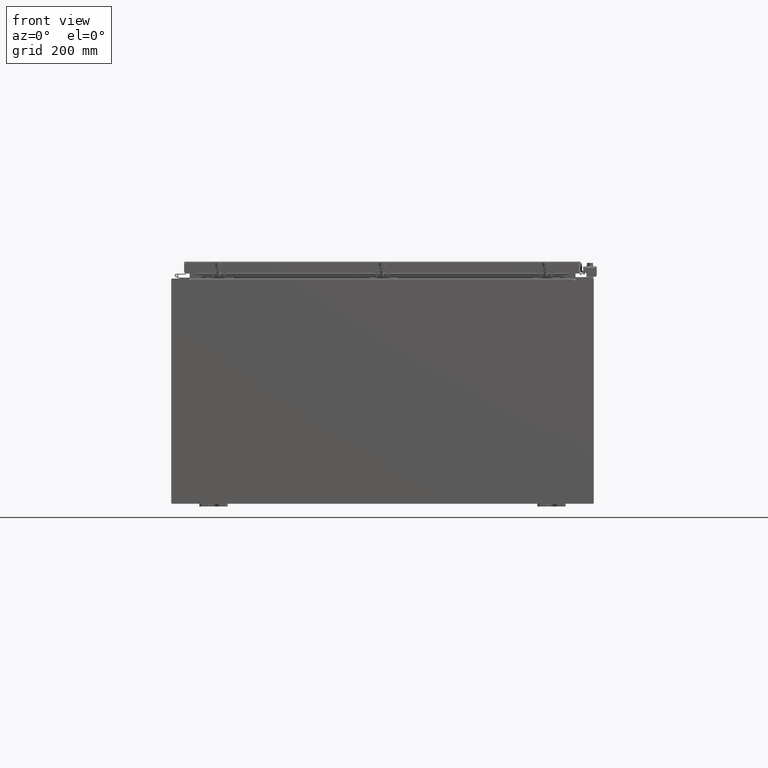
[diagram: clean part render]
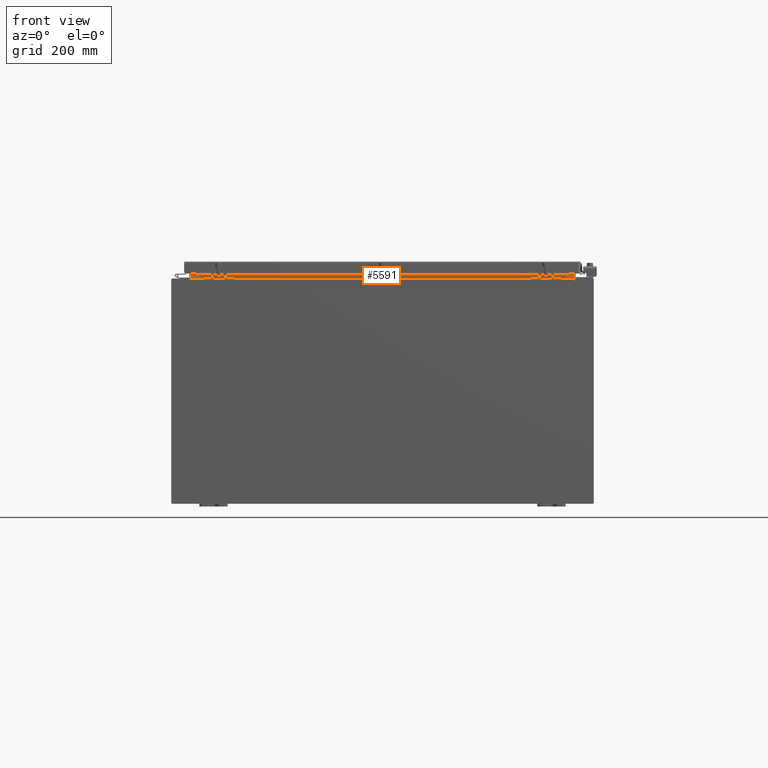
[diagram: same view with one face highlighted and labeled with its STEP entity id]
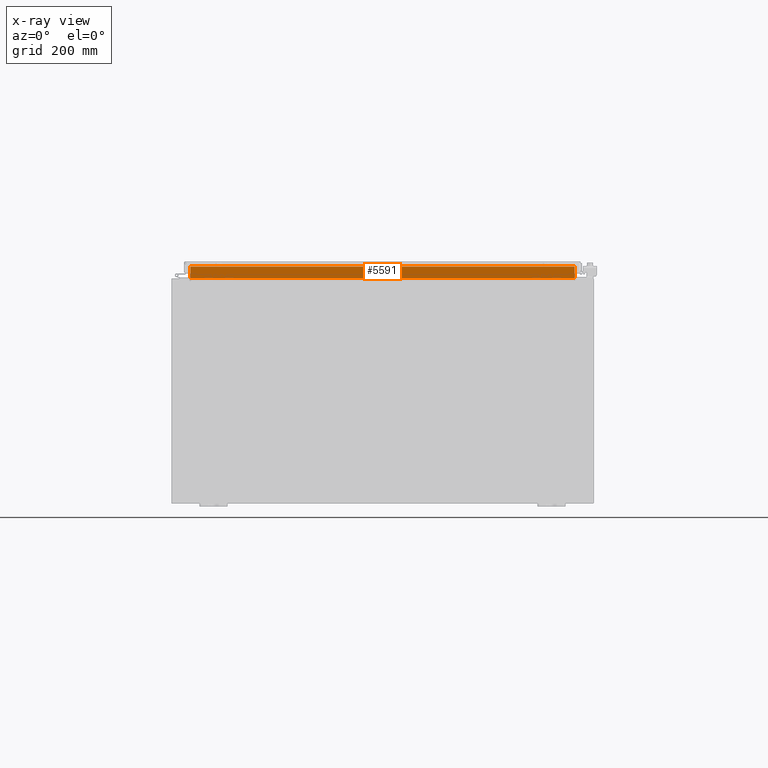
[diagram: x-ray of the same camera — body ghosted, the highlighted face saturated]
A machine part, front view. The second image highlights one B-rep face of the part: STEP entity #5591.
The next image is the same camera in x-ray: the body ghosted, the highlighted face saturated — about 0% of this face is hidden behind the body in this view.
In plain terms, the highlighted planar face has unit normal (0, -1, 0).
Its self-contained STEP definition (entity closure, byte-faithful):
#120 = VERTEX_POINT ( 'NONE', #35512 ) ;
#2834 = LINE ( 'NONE', #9807, #10678 ) ;
#3222 = EDGE_CURVE ( 'NONE', #3519, #5743, #34364, .T. ) ;
#3519 = VERTEX_POINT ( 'NONE', #22598 ) ;
#4043 = DIRECTION ( 'NONE',  ( -0.0000000000000000000, -0.0000000000000000000, 1.000000000000000000 ) ) ;
#4696 = CARTESIAN_POINT ( 'NONE',  ( -13.63719999999999800, -1.300300000000000200, 8.013000000000005200 ) ) ;
#5591 = ADVANCED_FACE ( 'NONE', ( #20575 ), #23343, .T. ) ;
#5743 = VERTEX_POINT ( 'NONE', #10703 ) ;
#6731 = DIRECTION ( 'NONE',  ( 0.0000000000000000000, 1.000000000000000000, 0.0000000000000000000 ) ) ;
#8247 = CARTESIAN_POINT ( 'NONE',  ( 13.63720000000000000, -1.300299999999999800, 8.013000000000003500 ) ) ;
#9807 = CARTESIAN_POINT ( 'NONE',  ( 13.63720000000000400, -1.300299999999999300, 8.837600000000001900 ) ) ;
#10128 = ORIENTED_EDGE ( 'NONE', *, *, #3222, .F. ) ;
#10678 = VECTOR ( 'NONE', #16507, 39.37007874015748100 ) ;
#10703 = CARTESIAN_POINT ( 'NONE',  ( -13.63719999999999800, -1.300299999999999800, 8.013000000000003500 ) ) ;
#10865 = ORIENTED_EDGE ( 'NONE', *, *, #32308, .F. ) ;
#10920 = CARTESIAN_POINT ( 'NONE',  ( -13.63719999999999800, -1.300299999999999800, 8.000000000000003600 ) ) ;
#15742 = LINE ( 'NONE', #4696, #33506 ) ;
#16507 = DIRECTION ( 'NONE',  ( -1.000000000000000000, -0.0000000000000000000, -0.0000000000000000000 ) ) ;
#16593 = VECTOR ( 'NONE', #30892, 39.37007874015748100 ) ;
#19553 = VECTOR ( 'NONE', #4043, 39.37007874015748100 ) ;
#19980 = DIRECTION ( 'NONE',  ( 0.0000000000000000000, -0.0000000000000000000, 1.000000000000000000 ) ) ;
#20575 = FACE_OUTER_BOUND ( 'NONE', #31305, .T. ) ;
#22598 = CARTESIAN_POINT ( 'NONE',  ( -13.63719999999999800, -1.300299999999999300, 8.837600000000001900 ) ) ;
#23343 = PLANE ( 'NONE',  #30276 ) ;
#26699 = CARTESIAN_POINT ( 'NONE',  ( 0.0000000000000000000, -1.300299999999999800, 0.0000000000000000000 ) ) ;
#27405 = EDGE_CURVE ( 'NONE', #30916, #120, #28437, .T. ) ;
#27873 = EDGE_CURVE ( 'NONE', #120, #3519, #2834, .T. ) ;
#27973 = DIRECTION ( 'NONE',  ( 1.000000000000000000, 0.0000000000000000000, -1.201939398262515500E-016 ) ) ;
#28437 = LINE ( 'NONE', #40688, #19553 ) ;
#29400 = ORIENTED_EDGE ( 'NONE', *, *, #27873, .F. ) ;
#30194 = ORIENTED_EDGE ( 'NONE', *, *, #27405, .F. ) ;
#30276 = AXIS2_PLACEMENT_3D ( 'NONE', #26699, #6731, #19980 ) ;
#30892 = DIRECTION ( 'NONE',  ( -0.0000000000000000000, -0.0000000000000000000, -1.000000000000000000 ) ) ;
#30916 = VERTEX_POINT ( 'NONE', #8247 ) ;
#31305 = EDGE_LOOP ( 'NONE', ( #10128, #29400, #30194, #10865 ) ) ;
#32308 = EDGE_CURVE ( 'NONE', #5743, #30916, #15742, .T. ) ;
#33506 = VECTOR ( 'NONE', #27973, 39.37007874015748100 ) ;
#34364 = LINE ( 'NONE', #10920, #16593 ) ;
#35512 = CARTESIAN_POINT ( 'NONE',  ( 13.63720000000000400, -1.300299999999999800, 8.837600000000001900 ) ) ;
#40688 = CARTESIAN_POINT ( 'NONE',  ( 13.63720000000000400, -1.300299999999999800, 8.925300000000001800 ) ) ;